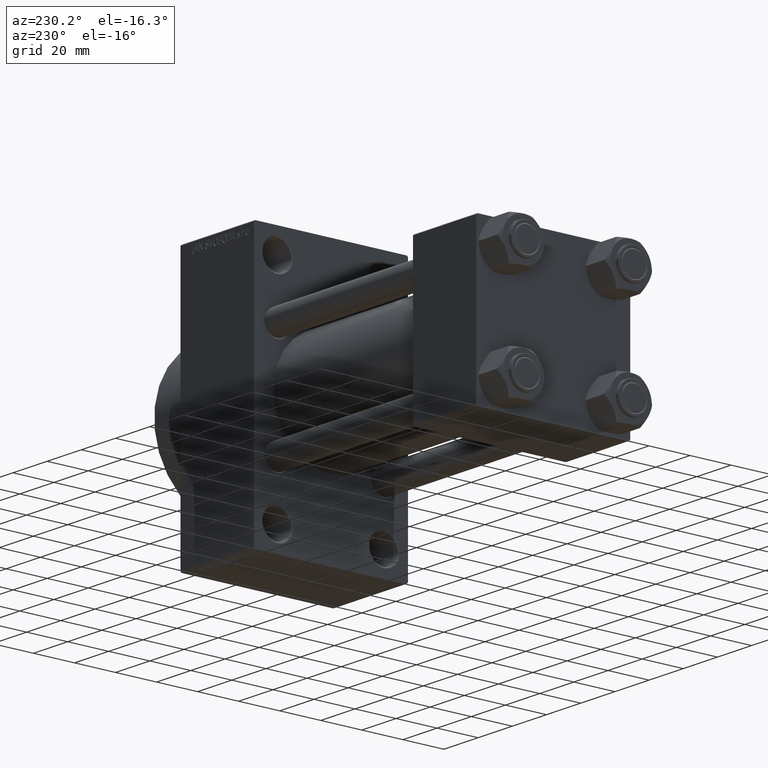
[diagram: clean part render]
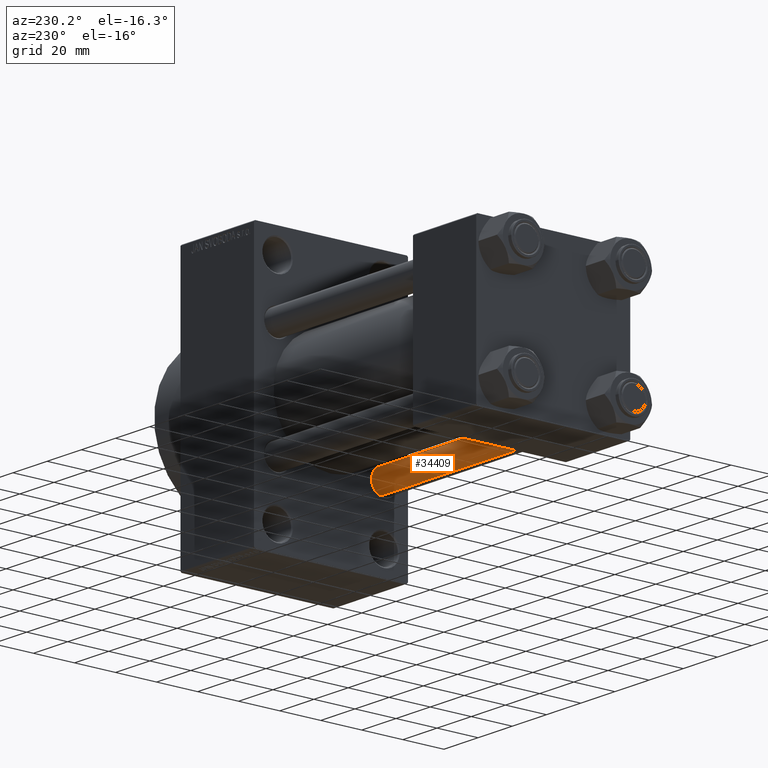
[diagram: same view with one face highlighted and labeled with its STEP entity id]
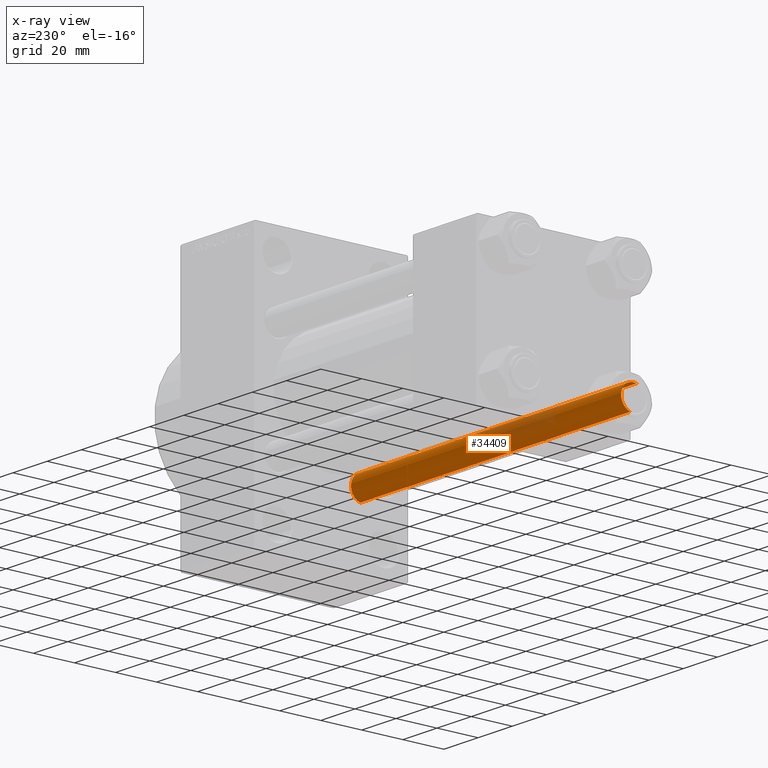
[diagram: x-ray of the same camera — body ghosted, the highlighted face saturated]
A machine part, auxiliary view. The second image highlights one B-rep face of the part: STEP entity #34409.
The next image is the same camera in x-ray: the body ghosted, the highlighted face saturated — about 16% of this face is hidden behind the body in this view.
In plain terms, the highlighted cylindrical surface (edge-blend (fillet) strip) has radius 6 mm, axis along (-1, 0, 0).
Its self-contained STEP definition (entity closure, byte-faithful):
#613 = DIRECTION ( 'NONE',  ( 1.000000000000000000, 0.000000000000000000, 0.000000000000000000 ) ) ;
#2450 = FACE_OUTER_BOUND ( 'NONE', #16120, .T. ) ;
#3960 = CARTESIAN_POINT ( 'NONE',  ( 0.000000000000000000, 0.000000000000000000, 0.5000000000001669775 ) ) ;
#8378 = DIRECTION ( 'NONE',  ( -0.000000000000000000, -0.000000000000000000, -1.000000000000000000 ) ) ;
#8975 = AXIS2_PLACEMENT_3D ( 'NONE', #3960, #33083, #613 ) ;
#9425 = ORIENTED_EDGE ( 'NONE', *, *, #19441, .T. ) ;
#10313 = CARTESIAN_POINT ( 'NONE',  ( 6.000000000000000888, 7.347880794884119736E-16, 159.0000000000000000 ) ) ;
#12240 = CARTESIAN_POINT ( 'NONE',  ( 0.000000000000000000, 0.000000000000000000, 158.5000000000000568 ) ) ;
#13804 = VECTOR ( 'NONE', #32264, 1000.000000000000000 ) ;
#15925 = VERTEX_POINT ( 'NONE', #32581 ) ;
#16120 = EDGE_LOOP ( 'NONE', ( #21819, #20488, #30369, #9425 ) ) ;
#16302 = VERTEX_POINT ( 'NONE', #36566 ) ;
#16661 = CYLINDRICAL_SURFACE ( 'NONE', #29271, 6.000000000000000888 ) ;
#17116 = DIRECTION ( 'NONE',  ( -0.000000000000000000, -0.000000000000000000, -1.000000000000000000 ) ) ;
#19441 = EDGE_CURVE ( 'NONE', #15925, #16302, #24995, .T. ) ;
#20238 = VERTEX_POINT ( 'NONE', #27874 ) ;
#20488 = ORIENTED_EDGE ( 'NONE', *, *, #41485, .T. ) ;
#21819 = ORIENTED_EDGE ( 'NONE', *, *, #31452, .F. ) ;
#23111 = CARTESIAN_POINT ( 'NONE',  ( -6.000000000000000888, 0.000000000000000000, 158.5000000000000568 ) ) ;
#24995 = CIRCLE ( 'NONE', #8975, 6.000000000000000888 ) ;
#26056 = CARTESIAN_POINT ( 'NONE',  ( -6.000000000000000888, 0.000000000000000000, 159.0000000000000000 ) ) ;
#27874 = CARTESIAN_POINT ( 'NONE',  ( 6.000000000000000888, 7.347880794884119736E-16, 158.5000000000000568 ) ) ;
#28005 = EDGE_CURVE ( 'NONE', #35073, #15925, #40604, .T. ) ;
#29271 = AXIS2_PLACEMENT_3D ( 'NONE', #31233, #17116, #45771 ) ;
#29913 = DIRECTION ( 'NONE',  ( 1.000000000000000000, 0.000000000000000000, 0.000000000000000000 ) ) ;
#30369 = ORIENTED_EDGE ( 'NONE', *, *, #28005, .T. ) ;
#31233 = CARTESIAN_POINT ( 'NONE',  ( 0.000000000000000000, 0.000000000000000000, 159.0000000000000000 ) ) ;
#31452 = EDGE_CURVE ( 'NONE', #20238, #16302, #43004, .T. ) ;
#32264 = DIRECTION ( 'NONE',  ( -0.000000000000000000, -0.000000000000000000, -1.000000000000000000 ) ) ;
#32581 = CARTESIAN_POINT ( 'NONE',  ( -6.000000000000000888, 0.000000000000000000, 0.5000000000001669775 ) ) ;
#33083 = DIRECTION ( 'NONE',  ( -0.000000000000000000, -0.000000000000000000, 1.000000000000000000 ) ) ;
#34409 = ADVANCED_FACE ( 'NONE', ( #2450 ), #16661, .T. ) ;
#34686 = CIRCLE ( 'NONE', #36216, 6.000000000000000888 ) ;
#35073 = VERTEX_POINT ( 'NONE', #23111 ) ;
#36216 = AXIS2_PLACEMENT_3D ( 'NONE', #12240, #38256, #29913 ) ;
#36566 = CARTESIAN_POINT ( 'NONE',  ( 6.000000000000000888, 7.347880794884119736E-16, 0.5000000000001669775 ) ) ;
#38256 = DIRECTION ( 'NONE',  ( 0.000000000000000000, 0.000000000000000000, -1.000000000000000000 ) ) ;
#40604 = LINE ( 'NONE', #26056, #43454 ) ;
#41485 = EDGE_CURVE ( 'NONE', #20238, #35073, #34686, .T. ) ;
#43004 = LINE ( 'NONE', #10313, #13804 ) ;
#43454 = VECTOR ( 'NONE', #8378, 1000.000000000000000 ) ;
#45771 = DIRECTION ( 'NONE',  ( -1.000000000000000000, 0.000000000000000000, 0.000000000000000000 ) ) ;